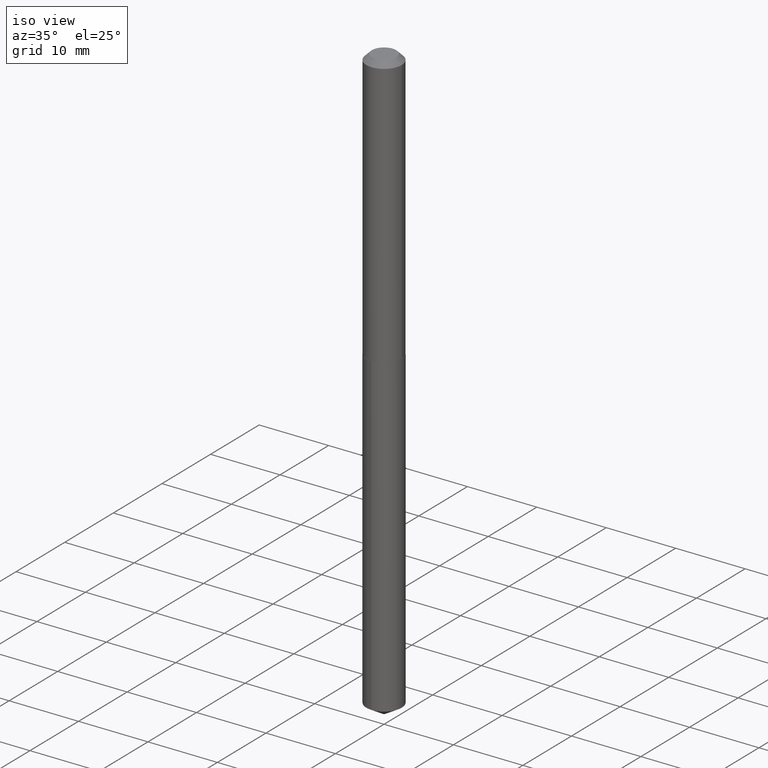
[diagram: clean part render]
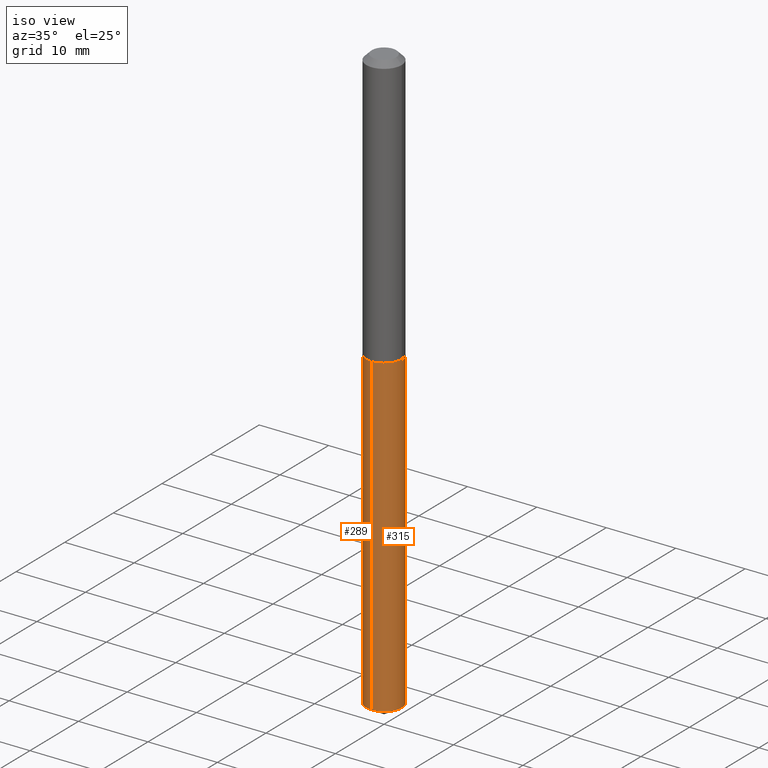
[diagram: same view with one multi-face feature highlighted, each face labeled with its STEP entity id]
A machine part, iso view. The highlighted faces form ONE feature: a constant-radius fillet chain: 2 tangent blend faces with common blend radius 2.5502 mm. The faces share edges in the B-rep.
Their STEP definitions:
[1] entity #289 (Cylinder):
#4 = EDGE_LOOP ( 'NONE', ( #121, #149, #96, #115 ) ) ;
#25 = DIRECTION ( 'NONE',  ( -2.445447979532766227E-29, 3.491511163794719536E-15, 1.000000000000000000 ) ) ;
#28 = DIRECTION ( 'NONE',  ( -2.445447979532766227E-29, 3.491511163794719536E-15, 1.000000000000000000 ) ) ;
#29 = CARTESIAN_POINT ( 'NONE',  ( 7.133849067032221574E-16, 0.1003999999999946324, -1.539400000000000546 ) ) ;
#32 = VERTEX_POINT ( 'NONE', #377 ) ;
#34 = VERTEX_POINT ( 'NONE', #47 ) ;
#47 = CARTESIAN_POINT ( 'NONE',  ( -7.010894528396199227E-16, -0.1004000000000116188, -3.325473593849633591 ) ) ;
#68 = VECTOR ( 'NONE', #357, 39.37007874015748143 ) ;
#78 = VECTOR ( 'NONE', #293, 39.37007874015748143 ) ;
#81 = DIRECTION ( 'NONE',  ( -2.445447979532766227E-29, 3.491511163794719536E-15, 1.000000000000000000 ) ) ;
#92 = CIRCLE ( 'NONE', #297, 0.1004000000000000031 ) ;
#96 = ORIENTED_EDGE ( 'NONE', *, *, #348, .T. ) ;
#115 = ORIENTED_EDGE ( 'NONE', *, *, #274, .F. ) ;
#116 = DIRECTION ( 'NONE',  ( -6.982962677686266711E-15, -1.000000000000000000, 5.441928274231599754E-15 ) ) ;
#117 = CYLINDRICAL_SURFACE ( 'NONE', #148, 0.1004000000000000031 ) ;
#121 = ORIENTED_EDGE ( 'NONE', *, *, #264, .F. ) ;
#140 = CARTESIAN_POINT ( 'NONE',  ( 7.133849067031780798E-16, 0.1003999999999946324, -1.539400000000000546 ) ) ;
#141 = LINE ( 'NONE', #140, #68 ) ;
#148 = AXIS2_PLACEMENT_3D ( 'NONE', #288, #28, #382 ) ;
#149 = ORIENTED_EDGE ( 'NONE', *, *, #358, .T. ) ;
#173 = AXIS2_PLACEMENT_3D ( 'NONE', #231, #81, #116 ) ;
#178 = CIRCLE ( 'NONE', #173, 0.1004000000000000031 ) ;
#231 = CARTESIAN_POINT ( 'NONE',  ( 8.132304741617813534E-29, -1.161088226530009238E-14, -3.325473593849634035 ) ) ;
#259 = CARTESIAN_POINT ( 'NONE',  ( -7.010894528396636059E-16, -0.1004000000000053877, -1.539399999999999880 ) ) ;
#264 = EDGE_CURVE ( 'NONE', #32, #355, #141, .T. ) ;
#274 = EDGE_CURVE ( 'NONE', #355, #275, #92, .T. ) ;
#275 = VERTEX_POINT ( 'NONE', #259 ) ;
#286 = CARTESIAN_POINT ( 'NONE',  ( 3.764554680241400051E-29, -5.374786373015138969E-15, -1.539400000000000324 ) ) ;
#288 = CARTESIAN_POINT ( 'NONE',  ( 3.764554680241400051E-29, -5.374786373015138969E-15, -1.539400000000000324 ) ) ;
#289 = ADVANCED_FACE ( 'NONE', ( #325 ), #117, .T. ) ;
#293 = DIRECTION ( 'NONE',  ( -2.445447979532765946E-29, 3.491511163794719536E-15, 1.000000000000000000 ) ) ;
#297 = AXIS2_PLACEMENT_3D ( 'NONE', #286, #25, #354 ) ;
#319 = CARTESIAN_POINT ( 'NONE',  ( -7.010894528396636059E-16, -0.1004000000000053877, -1.539399999999999880 ) ) ;
#321 = LINE ( 'NONE', #319, #78 ) ;
#325 = FACE_OUTER_BOUND ( 'NONE', #4, .T. ) ;
#348 = EDGE_CURVE ( 'NONE', #34, #275, #321, .T. ) ;
#354 = DIRECTION ( 'NONE',  ( -6.982962677686266711E-15, -1.000000000000000000, 2.720964137115799877E-15 ) ) ;
#355 = VERTEX_POINT ( 'NONE', #29 ) ;
#357 = DIRECTION ( 'NONE',  ( -2.445447979532765946E-29, 3.491511163794719536E-15, 1.000000000000000000 ) ) ;
#358 = EDGE_CURVE ( 'NONE', #32, #34, #178, .T. ) ;
#377 = CARTESIAN_POINT ( 'NONE',  ( 7.133849067032217629E-16, 0.1003999999999884013, -3.325473593849634923 ) ) ;
#382 = DIRECTION ( 'NONE',  ( -6.982962677686266711E-15, -1.000000000000000000, 2.720964137115799877E-15 ) ) ;
[2] entity #315 (Cylinder):
#18 = AXIS2_PLACEMENT_3D ( 'NONE', #200, #53, #145 ) ;
#29 = CARTESIAN_POINT ( 'NONE',  ( 7.133849067032221574E-16, 0.1003999999999946324, -1.539400000000000546 ) ) ;
#32 = VERTEX_POINT ( 'NONE', #377 ) ;
#34 = VERTEX_POINT ( 'NONE', #47 ) ;
#47 = CARTESIAN_POINT ( 'NONE',  ( -7.010894528396199227E-16, -0.1004000000000116188, -3.325473593849633591 ) ) ;
#53 = DIRECTION ( 'NONE',  ( -2.445447979532766227E-29, 3.491511163794719536E-15, 1.000000000000000000 ) ) ;
#57 = DIRECTION ( 'NONE',  ( -2.445447979532766227E-29, 3.491511163794719536E-15, 1.000000000000000000 ) ) ;
#60 = ORIENTED_EDGE ( 'NONE', *, *, #348, .F. ) ;
#67 = EDGE_CURVE ( 'NONE', #34, #32, #234, .T. ) ;
#68 = VECTOR ( 'NONE', #357, 39.37007874015748143 ) ;
#69 = ORIENTED_EDGE ( 'NONE', *, *, #67, .T. ) ;
#78 = VECTOR ( 'NONE', #293, 39.37007874015748143 ) ;
#98 = ORIENTED_EDGE ( 'NONE', *, *, #264, .T. ) ;
#103 = CARTESIAN_POINT ( 'NONE',  ( 8.132304741617813534E-29, -1.161088226530009238E-14, -3.325473593849634035 ) ) ;
#131 = AXIS2_PLACEMENT_3D ( 'NONE', #103, #283, #341 ) ;
#140 = CARTESIAN_POINT ( 'NONE',  ( 7.133849067031780798E-16, 0.1003999999999946324, -1.539400000000000546 ) ) ;
#141 = LINE ( 'NONE', #140, #68 ) ;
#145 = DIRECTION ( 'NONE',  ( -6.982962677686266711E-15, -1.000000000000000000, 2.720964137115799877E-15 ) ) ;
#156 = EDGE_LOOP ( 'NONE', ( #69, #98, #298, #60 ) ) ;
#191 = CIRCLE ( 'NONE', #18, 0.1004000000000000031 ) ;
#199 = CYLINDRICAL_SURFACE ( 'NONE', #239, 0.1004000000000000031 ) ;
#200 = CARTESIAN_POINT ( 'NONE',  ( 3.764554680241400051E-29, -5.374786373015138969E-15, -1.539400000000000324 ) ) ;
#229 = FACE_OUTER_BOUND ( 'NONE', #156, .T. ) ;
#234 = CIRCLE ( 'NONE', #131, 0.1004000000000000031 ) ;
#239 = AXIS2_PLACEMENT_3D ( 'NONE', #386, #57, #292 ) ;
#259 = CARTESIAN_POINT ( 'NONE',  ( -7.010894528396636059E-16, -0.1004000000000053877, -1.539399999999999880 ) ) ;
#264 = EDGE_CURVE ( 'NONE', #32, #355, #141, .T. ) ;
#275 = VERTEX_POINT ( 'NONE', #259 ) ;
#283 = DIRECTION ( 'NONE',  ( -2.445447979532766227E-29, 3.491511163794719536E-15, 1.000000000000000000 ) ) ;
#292 = DIRECTION ( 'NONE',  ( -6.982962677686266711E-15, -1.000000000000000000, 2.720964137115799877E-15 ) ) ;
#293 = DIRECTION ( 'NONE',  ( -2.445447979532765946E-29, 3.491511163794719536E-15, 1.000000000000000000 ) ) ;
#298 = ORIENTED_EDGE ( 'NONE', *, *, #365, .F. ) ;
#315 = ADVANCED_FACE ( 'NONE', ( #229 ), #199, .T. ) ;
#319 = CARTESIAN_POINT ( 'NONE',  ( -7.010894528396636059E-16, -0.1004000000000053877, -1.539399999999999880 ) ) ;
#321 = LINE ( 'NONE', #319, #78 ) ;
#341 = DIRECTION ( 'NONE',  ( -6.982962677686266711E-15, -1.000000000000000000, 5.441928274231599754E-15 ) ) ;
#348 = EDGE_CURVE ( 'NONE', #34, #275, #321, .T. ) ;
#355 = VERTEX_POINT ( 'NONE', #29 ) ;
#357 = DIRECTION ( 'NONE',  ( -2.445447979532765946E-29, 3.491511163794719536E-15, 1.000000000000000000 ) ) ;
#365 = EDGE_CURVE ( 'NONE', #275, #355, #191, .T. ) ;
#377 = CARTESIAN_POINT ( 'NONE',  ( 7.133849067032217629E-16, 0.1003999999999884013, -3.325473593849634923 ) ) ;
#386 = CARTESIAN_POINT ( 'NONE',  ( 3.764554680241400051E-29, -5.374786373015138969E-15, -1.539400000000000324 ) ) ;